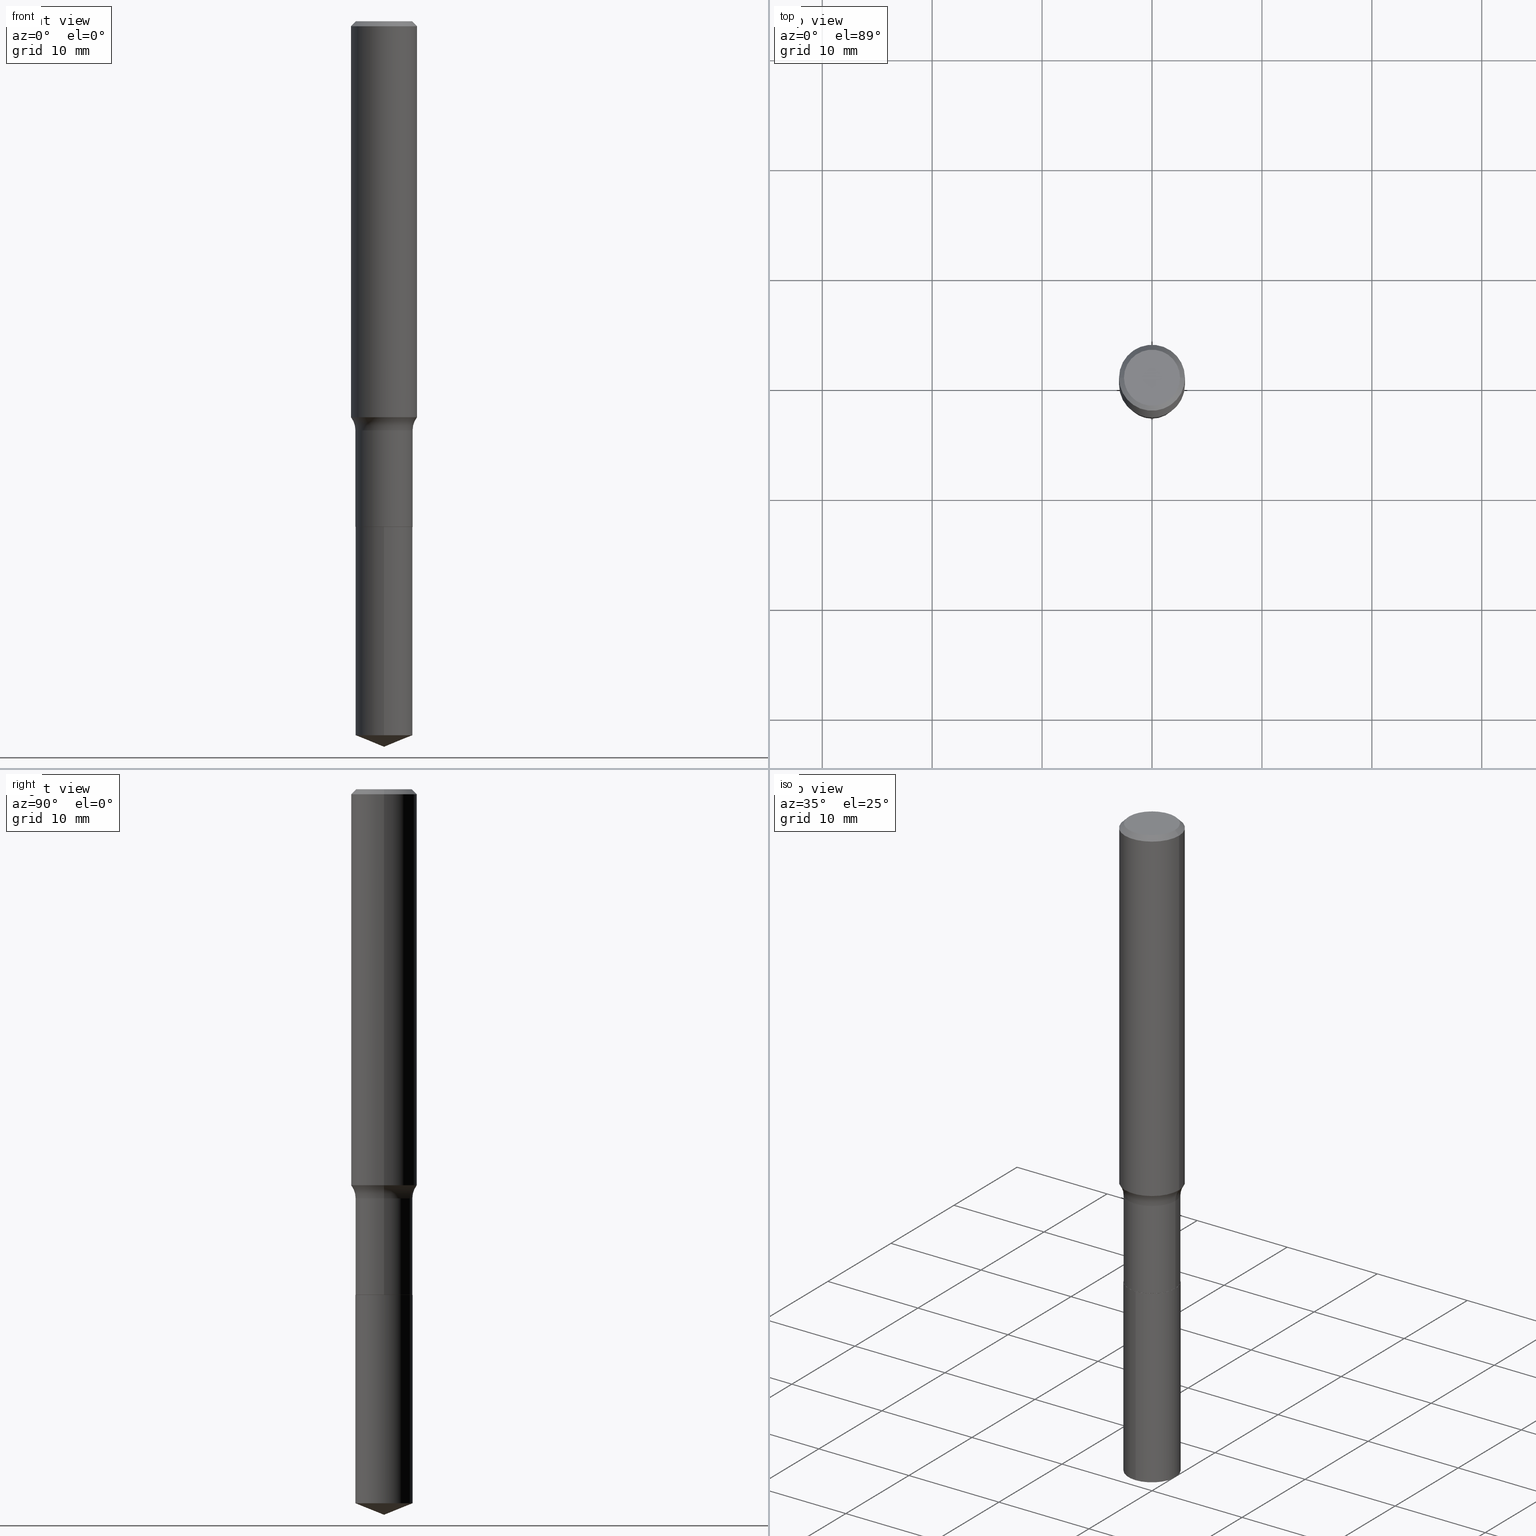
[diagram: canonical four-view strip — front | top / right | iso, engineering-drawing reading convention]
A machine part, canonical four-view strip (front | top / right | iso — engineering-drawing reading convention). The complete STEP part file that produces these views, byte-faithful:
ISO-10303-21;
HEADER;
FILE_DESCRIPTION (( 'STEP AP203' ),
    '1' );
FILE_NAME ('69142.STEP',
    '2024-04-19T17:17:02',
    ( '' ),
    ( '' ),
    'SwSTEP 2.0',
    'SolidWorks 2023',
    '' );
FILE_SCHEMA (( 'CONFIG_CONTROL_DESIGN' ));
ENDSEC;

DATA;
#1 = ORIENTED_EDGE ( 'NONE', *, *, #220, .F. ) ;
#2 = DIRECTION ( 'NONE',  ( -2.431437355357483089E-29, 3.511575175048929728E-15, 1.000000000000000000 ) ) ;
#3 = DIRECTION ( 'NONE',  ( -2.445468806185136877E-29, 3.491481338843145188E-15, 1.000000000000000000 ) ) ;
#4 = CIRCLE ( 'NONE', #60, 0.1023500000000000243 ) ;
#5 = ORIENTED_EDGE ( 'NONE', *, *, #312, .T. ) ;
#6 = ADVANCED_FACE ( 'NONE', ( #315 ), #83, .T. ) ;
#7 = DIRECTION ( 'NONE',  ( 1.000000000000000000, -6.982962677686270655E-15, 0.000000000000000000 ) ) ;
#8 = CC_DESIGN_PERSON_AND_ORGANIZATION_ASSIGNMENT ( #180, #476, ( #179 ) ) ;
#9 = FACE_OUTER_BOUND ( 'NONE', #159, .T. ) ;
#10 = ORIENTED_EDGE ( 'NONE', *, *, #53, .T. ) ;
#11 = VECTOR ( 'NONE', #52, 39.37007874015748143 ) ;
#12 = AXIS2_PLACEMENT_3D ( 'NONE', #14, #54, #157 ) ;
#13 = DIRECTION ( 'NONE',  ( 1.000000000000000000, -6.982962677686266711E-15, 0.000000000000000000 ) ) ;
#14 = CARTESIAN_POINT ( 'NONE',  ( 4.428744008001282238E-29, -6.323072704644935995E-15, -1.810999999999999943 ) ) ;
#15 = EDGE_LOOP ( 'NONE', ( #5, #18, #57, #266 ) ) ;
#16 = ORIENTED_EDGE ( 'NONE', *, *, #312, .F. ) ;
#17 = CYLINDRICAL_SURFACE ( 'NONE', #12, 0.1023499999999999965 ) ;
#18 = ORIENTED_EDGE ( 'NONE', *, *, #367, .T. ) ;
#19 = APPROVAL_ROLE ( '' ) ;
#20 = FACE_OUTER_BOUND ( 'NONE', #32, .T. ) ;
#21 = AXIS2_PLACEMENT_3D ( 'NONE', #324, #214, #478 ) ;
#22 = DIRECTION ( 'NONE',  ( -2.445468806185136597E-29, 3.491481338843145583E-15, 1.000000000000000000 ) ) ;
#23 = CYLINDRICAL_SURFACE ( 'NONE', #348, 0.1023499999999999827 ) ;
#24 = DIRECTION ( 'NONE',  ( -6.982962677686265133E-15, -1.000000000000000000, 5.338247178630703951E-15 ) ) ;
#25 = CARTESIAN_POINT ( 'NONE',  ( 0.000000000000000000, 0.000000000000000000, 0.000000000000000000 ) ) ;
#26 = DIRECTION ( 'NONE',  ( -2.445468806185136597E-29, 3.491481338843145583E-15, 1.000000000000000000 ) ) ;
#27 = PERSON_AND_ORGANIZATION ( #306, #329 ) ;
#28 = CIRCLE ( 'NONE', #100, 0.1023499999999999965 ) ;
#29 = CONICAL_SURFACE ( 'NONE', #186, 0.1018499999999999961, 0.7853981633975507526 ) ;
#30 = COORDINATED_UNIVERSAL_TIME_OFFSET ( 5, 0, .BEHIND. ) ;
#31 = DIRECTION ( 'NONE',  ( 1.000000000000000000, -6.982962677686265922E-15, 0.000000000000000000 ) ) ;
#32 = EDGE_LOOP ( 'NONE', ( #331, #409, #224, #433 ) ) ;
#33 = CARTESIAN_POINT ( 'NONE',  ( 0.1018499999999999961, -7.034287453367281792E-15, -1.810999999999999943 ) ) ;
#34 = CARTESIAN_POINT ( 'NONE',  ( 6.242712779329400961E-29, -8.942876045115246072E-15, -2.557047915785771508 ) ) ;
#35 = EDGE_LOOP ( 'NONE', ( #435, #10, #204 ) ) ;
#36 = AXIS2_PLACEMENT_3D ( 'NONE', #275, #357, #384 ) ;
#37 = ORIENTED_EDGE ( 'NONE', *, *, #118, .F. ) ;
#38 = DIRECTION ( 'NONE',  ( -2.445468806185136597E-29, 3.491481338843145583E-15, 1.000000000000000000 ) ) ;
#39 = VECTOR ( 'NONE', #405, 39.37007874015748143 ) ;
#40 = CC_DESIGN_SECURITY_CLASSIFICATION ( #269, ( #179 ) ) ;
#41 = DIRECTION ( 'NONE',  ( -6.474490251793179418E-15, -0.9271838545667864251, 0.3746065934159144017 ) ) ;
#42 = DIRECTION ( 'NONE',  ( 1.000000000000000000, -6.982962677686267499E-15, 4.883557194083112901E-29 ) ) ;
#43 = CARTESIAN_POINT ( 'NONE',  ( 3.583345441703080279E-29, -5.116067605806860307E-15, -1.465299999999999825 ) ) ;
#44 = DIRECTION ( 'NONE',  ( 6.982962677686265922E-15, 1.000000000000000000, -3.511575175048929728E-15 ) ) ;
#45 = EDGE_CURVE ( 'NONE', #439, #448, #28, .T. ) ;
#46 = DIRECTION ( 'NONE',  ( -0.7071067811865454633, 2.468850131082235761E-15, -0.7071067811865493491 ) ) ;
#47 = CARTESIAN_POINT ( 'NONE',  ( 0.1018499999999999961, -7.034287453367281792E-15, -1.810999999999999943 ) ) ;
#48 = CIRCLE ( 'NONE', #319, 0.1023499999999999965 ) ;
#49 = CARTESIAN_POINT ( 'NONE',  ( 0.1023499999999999965, -7.036033194036704874E-15, -1.810499999999999998 ) ) ;
#50 = AXIS2_PLACEMENT_3D ( 'NONE', #185, #265, #411 ) ;
#51 = ADVANCED_FACE ( 'NONE', ( #123 ), #325, .T. ) ;
#52 = DIRECTION ( 'NONE',  ( 6.588037525764791291E-15, 0.9271838545667890896, 0.3746065934159078514 ) ) ;
#53 = EDGE_CURVE ( 'NONE', #55, #81, #163, .T. ) ;
#54 = DIRECTION ( 'NONE',  ( -2.431437355357483089E-29, 3.511575175048930123E-15, 1.000000000000000000 ) ) ;
#55 = VERTEX_POINT ( 'NONE', #431 ) ;
#56 = VECTOR ( 'NONE', #429, 39.37007874015748143 ) ;
#57 = ORIENTED_EDGE ( 'NONE', *, *, #428, .F. ) ;
#58 = DIRECTION ( 'NONE',  ( -6.982962677686265922E-15, -1.000000000000000000, 2.669123589315352370E-15 ) ) ;
#59 = DIRECTION ( 'NONE',  ( 1.000000000000000000, 0.000000000000000000, 0.000000000000000000 ) ) ;
#60 = AXIS2_PLACEMENT_3D ( 'NONE', #466, #447, #24 ) ;
#61 = ADVANCED_FACE ( 'NONE', ( #393 ), #23, .T. ) ;
#62 = DIMENSIONAL_EXPONENTS ( 1.000000000000000000, 0.000000000000000000, 0.000000000000000000, 0.000000000000000000, 0.000000000000000000, 0.000000000000000000, 0.000000000000000000 ) ;
#63 = COORDINATED_UNIVERSAL_TIME_OFFSET ( 5, 0, .BEHIND. ) ;
#64 = EDGE_CURVE ( 'NONE', #253, #304, #67, .T. ) ;
#65 = PERSON_AND_ORGANIZATION ( #306, #329 ) ;
#66 = EDGE_CURVE ( 'NONE', #256, #360, #363, .T. ) ;
#67 = CIRCLE ( 'NONE', #196, 0.1018499999999999961 ) ;
#68 = CC_DESIGN_APPROVAL ( #252, ( #279 ) ) ;
#69 = MANIFOLD_SOLID_BREP ( 'Body-Move/Copy2[1]', #238 ) ;
#70 = LINE ( 'NONE', #33, #201 ) ;
#71 = EDGE_CURVE ( 'NONE', #116, #79, #232, .T. ) ;
#72 = ORIENTED_EDGE ( 'NONE', *, *, #446, .T. ) ;
#73 = PERSON_AND_ORGANIZATION ( #306, #329 ) ;
#74 = EDGE_LOOP ( 'NONE', ( #158, #236, #113, #346 ) ) ;
#75 = DIRECTION ( 'NONE',  ( -0.7071067811866199593, 7.493145998870616062E-15, 0.7071067811864750752 ) ) ;
#76 = EDGE_CURVE ( 'NONE', #79, #116, #48, .T. ) ;
#77 = DIRECTION ( 'NONE',  ( 7.105427357601001859E-15, 1.000000000000000000, -3.491481338843145583E-15 ) ) ;
#78 = CIRCLE ( 'NONE', #313, 0.07800000000000002764 ) ;
#79 = VERTEX_POINT ( 'NONE', #130 ) ;
#80 = DIRECTION ( 'NONE',  ( 1.000000000000000000, -6.982962677686268288E-15, 0.000000000000000000 ) ) ;
#81 = VERTEX_POINT ( 'NONE', #362 ) ;
#82 = EDGE_CURVE ( 'NONE', #407, #119, #102, .T. ) ;
#83 = CYLINDRICAL_SURFACE ( 'NONE', #470, 0.1181000000000000799 ) ;
#84 = AXIS2_PLACEMENT_3D ( 'NONE', #43, #417, #257 ) ;
#85 = CARTESIAN_POINT ( 'NONE',  ( 0.000000000000000000, 0.000000000000000000, 0.000000000000000000 ) ) ;
#86 = CARTESIAN_POINT ( 'NONE',  ( 4.332147990156996744E-31, -6.185159191760671627E-17, -0.01771500000000011260 ) ) ;
#87 = ORIENTED_EDGE ( 'NONE', *, *, #82, .T. ) ;
#88 = ORIENTED_EDGE ( 'NONE', *, *, #397, .T. ) ;
#89 = EDGE_CURVE ( 'NONE', #423, #165, #168, .T. ) ;
#90 = AXIS2_PLACEMENT_3D ( 'NONE', #151, #372, #307 ) ;
#91 = LOCAL_TIME ( 13, 17, 2.000000000000000000, #63 ) ;
#92 = DIRECTION ( 'NONE',  ( -2.445468806185136597E-29, 3.491481338843145583E-15, 1.000000000000000000 ) ) ;
#93 = ORIENTED_EDGE ( 'NONE', *, *, #220, .T. ) ;
#94 = EDGE_CURVE ( 'NONE', #360, #256, #140, .T. ) ;
#95 = ADVANCED_BREP_SHAPE_REPRESENTATION ( '69142', ( #69, #374, #178 ), #406 ) ;
#96 = TOROIDAL_SURFACE ( 'NONE', #268, 0.1803499999999999548, 0.07800000000000001377 ) ;
#97 = PERSON_AND_ORGANIZATION_ROLE ( 'creator' ) ;
#98 = LINE ( 'NONE', #195, #278 ) ;
#99 = DIRECTION ( 'NONE',  ( 1.000000000000000000, -6.982962677686265922E-15, 0.000000000000000000 ) ) ;
#100 = AXIS2_PLACEMENT_3D ( 'NONE', #388, #198, #7 ) ;
#101 = EDGE_CURVE ( 'NONE', #448, #439, #206, .T. ) ;
#102 = CIRCLE ( 'NONE', #385, 0.1181000000000001632 ) ;
#103 = DATE_AND_TIME ( #182, #187 ) ;
#104 = FACE_OUTER_BOUND ( 'NONE', #35, .T. ) ;
#105 = ORIENTED_EDGE ( 'NONE', *, *, #446, .F. ) ;
#106 = DATE_TIME_ROLE ( 'classification_date' ) ;
#107 = EDGE_LOOP ( 'NONE', ( #427, #202, #300, #37 ) ) ;
#108 = CARTESIAN_POINT ( 'NONE',  ( 4.428744008001282238E-29, -6.323072704644935995E-15, -1.810999999999999943 ) ) ;
#109 = PLANE ( 'NONE',  #291 ) ;
#110 = VECTOR ( 'NONE', #298, 39.37007874015748143 ) ;
#111 = CARTESIAN_POINT ( 'NONE',  ( 0.1180999999999999966, -8.865394841523547570E-16, -0.01771500000000011260 ) ) ;
#112 = CIRCLE ( 'NONE', #197, 0.1023499999999999688 ) ;
#113 = ORIENTED_EDGE ( 'NONE', *, *, #240, .T. ) ;
#114 = DIRECTION ( 'NONE',  ( 1.000000000000000000, -6.982962677686266711E-15, 0.000000000000000000 ) ) ;
#115 = EDGE_CURVE ( 'NONE', #256, #188, #230, .T. ) ;
#116 = VERTEX_POINT ( 'NONE', #453 ) ;
#117 = CARTESIAN_POINT ( 'NONE',  ( -8.938262235057461474E-28, 1.291629041461802011E-13, 36.77167874015748339 ) ) ;
#118 = EDGE_CURVE ( 'NONE', #165, #423, #112, .T. ) ;
#119 = VERTEX_POINT ( 'NONE', #228 ) ;
#120 = VECTOR ( 'NONE', #41, 39.37007874015748143 ) ;
#121 = APPROVAL_PERSON_ORGANIZATION ( #27, #267, #175 ) ;
#122 = DIRECTION ( 'NONE',  ( 1.000000000000000000, -6.982962677686270655E-15, 0.000000000000000000 ) ) ;
#123 = FACE_OUTER_BOUND ( 'NONE', #390, .T. ) ;
#124 = EDGE_CURVE ( 'NONE', #360, #137, #340, .T. ) ;
#125 = ORIENTED_EDGE ( 'NONE', *, *, #89, .T. ) ;
#126 = CARTESIAN_POINT ( 'NONE',  ( 4.428744008001282238E-29, -6.323072704644935995E-15, -1.810999999999999943 ) ) ;
#127 = DIRECTION ( 'NONE',  ( 1.000000000000000000, -6.982962677686266711E-15, 4.876176775795936353E-29 ) ) ;
#128 = ORIENTED_EDGE ( 'NONE', *, *, #205, .T. ) ;
#129 = EDGE_CURVE ( 'NONE', #119, #423, #78, .T. ) ;
#130 = CARTESIAN_POINT ( 'NONE',  ( 7.272404900505251315E-16, 0.1023499999999936821, -1.811000000000000165 ) ) ;
#131 = CARTESIAN_POINT ( 'NONE',  ( 0.000000000000000000, 0.000000000000000000, 0.000000000000000000 ) ) ;
#132 = CARTESIAN_POINT ( 'NONE',  ( 0.1003850000000000159, -7.803837484803599345E-16, -2.868857591682071522E-17 ) ) ;
#133 = COORDINATED_UNIVERSAL_TIME_OFFSET ( 5, 0, .BEHIND. ) ;
#134 = AXIS2_PLACEMENT_3D ( 'NONE', #108, #371, #99 ) ;
#135 = APPROVAL_STATUS ( 'not_yet_approved' ) ;
#136 = MECHANICAL_CONTEXT ( 'NONE', #164, 'mechanical' ) ;
#137 = VERTEX_POINT ( 'NONE', #111 ) ;
#138 = CARTESIAN_POINT ( 'NONE',  ( -0.1018499999999999961, -5.599384928273273983E-15, -1.810999999999999943 ) ) ;
#139 = LINE ( 'NONE', #219, #110 ) ;
#140 = CIRCLE ( 'NONE', #425, 0.1003850000000000159 ) ;
#141 = CIRCLE ( 'NONE', #251, 0.1023500000000000243 ) ;
#142 = ORIENTED_EDGE ( 'NONE', *, *, #205, .F. ) ;
#143 = DIRECTION ( 'NONE',  ( 0.7071067811866199593, -2.468850131083015945E-15, 0.7071067811864750752 ) ) ;
#144 = DIRECTION ( 'NONE',  ( 2.438088387897960049E-29, -3.491481338843145188E-15, -1.000000000000000000 ) ) ;
#145 = EDGE_CURVE ( 'NONE', #253, #439, #191, .T. ) ;
#146 = EDGE_LOOP ( 'NONE', ( #142, #193 ) ) ;
#147 = DIRECTION ( 'NONE',  ( -2.445468806185136597E-29, 3.491481338843145583E-15, 1.000000000000000000 ) ) ;
#148 = CARTESIAN_POINT ( 'NONE',  ( 3.583345441703080279E-29, -5.116067605806860307E-15, -1.465299999999999825 ) ) ;
#149 = AXIS2_PLACEMENT_3D ( 'NONE', #378, #77, #301 ) ;
#150 = ORIENTED_EDGE ( 'NONE', *, *, #82, .F. ) ;
#151 = CARTESIAN_POINT ( 'NONE',  ( 4.332147990156996744E-31, -6.185159191760671627E-17, -0.01771500000000011260 ) ) ;
#152 = EDGE_LOOP ( 'NONE', ( #150, #93, #277, #262 ) ) ;
#153 = ADVANCED_FACE ( 'NONE', ( #104 ), #349, .T. ) ;
#154 = CYLINDRICAL_SURFACE ( 'NONE', #473, 0.1023499999999999827 ) ;
#155 = ORIENTED_EDGE ( 'NONE', *, *, #76, .F. ) ;
#156 = CC_DESIGN_APPROVAL ( #267, ( #179 ) ) ;
#157 = DIRECTION ( 'NONE',  ( -6.982962677686265922E-15, -1.000000000000000000, 2.669123589315352370E-15 ) ) ;
#158 = ORIENTED_EDGE ( 'NONE', *, *, #145, .F. ) ;
#159 = EDGE_LOOP ( 'NONE', ( #352, #430, #380, #461 ) ) ;
#160 = CARTESIAN_POINT ( 'NONE',  ( -0.1018499999999999961, -5.596735701099162782E-15, -1.810999999999999943 ) ) ;
#161 = CARTESIAN_POINT ( 'NONE',  ( 4.428744008001282238E-29, -6.323072704644935995E-15, -1.810999999999999943 ) ) ;
#162 = DIRECTION ( 'NONE',  ( -2.431437355357483089E-29, 3.511575175048930123E-15, 1.000000000000000000 ) ) ;
#163 = LINE ( 'NONE', #308, #11 ) ;
#164 = APPLICATION_CONTEXT ( 'configuration controlled 3d designs of mechanical parts and assemblies' ) ;
#165 = VERTEX_POINT ( 'NONE', #222 ) ;
#166 = CALENDAR_DATE ( 2024, 19, 4 ) ;
#167 = CC_DESIGN_DATE_AND_TIME_ASSIGNMENT ( #366, #176, ( #279 ) ) ;
#168 = CIRCLE ( 'NONE', #84, 0.1023499999999999688 ) ;
#169 = AXIS2_PLACEMENT_3D ( 'NONE', #386, #200, #122 ) ;
#170 = CARTESIAN_POINT ( 'NONE',  ( 0.000000000000000000, 0.000000000000000000, 0.000000000000000000 ) ) ;
#171 = CALENDAR_DATE ( 2024, 19, 4 ) ;
#172 = EDGE_CURVE ( 'NONE', #455, #116, #486, .T. ) ;
#173 = PERSON_AND_ORGANIZATION_ROLE ( 'classification_officer' ) ;
#174 = DIRECTION ( 'NONE',  ( 0.000000000000000000, 0.000000000000000000, 1.000000000000000000 ) ) ;
#175 = APPROVAL_ROLE ( '' ) ;
#176 = DATE_TIME_ROLE ( 'creation_date' ) ;
#177 = CONICAL_SURFACE ( 'NONE', #90, 0.1180999999999999966, 0.7853981633974456145 ) ;
#178 = AXIS2_PLACEMENT_3D ( 'NONE', #25, #174, #59 ) ;
#179 = PRODUCT_DEFINITION_FORMATION_WITH_SPECIFIED_SOURCE ( 'ANY', '', #440, .NOT_KNOWN. ) ;
#180 = PERSON_AND_ORGANIZATION ( #306, #329 ) ;
#181 = EDGE_LOOP ( 'NONE', ( #1, #16, #243, #125 ) ) ;
#182 = CALENDAR_DATE ( 2024, 19, 4 ) ;
#183 = ORIENTED_EDGE ( 'NONE', *, *, #66, .T. ) ;
#184 = CARTESIAN_POINT ( 'NONE',  ( 0.1180999999999999966, -8.720764054544245267E-16, -0.01771500000000011260 ) ) ;
#185 = CARTESIAN_POINT ( 'NONE',  ( 4.428744008001282238E-29, -6.323072704644935995E-15, -1.810999999999999943 ) ) ;
#186 = AXIS2_PLACEMENT_3D ( 'NONE', #161, #22, #31 ) ;
#187 = LOCAL_TIME ( 13, 17, 2.000000000000000000, #261 ) ;
#188 = VERTEX_POINT ( 'NONE', #218 ) ;
#189 = DIRECTION ( 'NONE',  ( -2.445468806185136597E-29, 3.491481338843145583E-15, 1.000000000000000000 ) ) ;
#190 = FACE_OUTER_BOUND ( 'NONE', #373, .T. ) ;
#191 = LINE ( 'NONE', #138, #463 ) ;
#192 = CARTESIAN_POINT ( 'NONE',  ( 6.317846824160882656E-29, -9.124476934847141705E-15, -2.598399999999999821 ) ) ;
#193 = ORIENTED_EDGE ( 'NONE', *, *, #64, .F. ) ;
#194 = CARTESIAN_POINT ( 'NONE',  ( 0.1803499999999999548, -6.375444924727577947E-15, -1.465299999999999825 ) ) ;
#195 = CARTESIAN_POINT ( 'NONE',  ( -0.1181000000000000799, 8.391509709326788873E-16, -5.809262341591047988E-30 ) ) ;
#196 = AXIS2_PLACEMENT_3D ( 'NONE', #126, #283, #246 ) ;
#197 = AXIS2_PLACEMENT_3D ( 'NONE', #381, #147, #297 ) ;
#198 = DIRECTION ( 'NONE',  ( -2.445468806185136597E-29, 3.491481338843145583E-15, 1.000000000000000000 ) ) ;
#199 = ORIENTED_EDGE ( 'NONE', *, *, #66, .F. ) ;
#200 = DIRECTION ( 'NONE',  ( -2.445468806185136597E-29, 3.491481338843145583E-15, 1.000000000000000000 ) ) ;
#201 = VECTOR ( 'NONE', #143, 39.37007874015748143 ) ;
#202 = ORIENTED_EDGE ( 'NONE', *, *, #45, .T. ) ;
#203 = DIRECTION ( 'NONE',  ( -2.431437355357483089E-29, 3.511575175048930123E-15, 1.000000000000000000 ) ) ;
#204 = ORIENTED_EDGE ( 'NONE', *, *, #358, .F. ) ;
#205 = EDGE_CURVE ( 'NONE', #304, #253, #480, .T. ) ;
#206 = CIRCLE ( 'NONE', #484, 0.1023499999999999965 ) ;
#207 = AXIS2_PLACEMENT_3D ( 'NONE', #464, #394, #432 ) ;
#208 = APPROVAL_PERSON_ORGANIZATION ( #242, #252, #19 ) ;
#209 = PERSON_AND_ORGANIZATION ( #306, #329 ) ;
#210 = DIRECTION ( 'NONE',  ( 1.000000000000000000, -6.982962677686266711E-15, 4.876176775795936353E-29 ) ) ;
#211 = ADVANCED_FACE ( 'NONE', ( #456 ), #227, .F. ) ;
#212 = PERSON_AND_ORGANIZATION ( #306, #329 ) ;
#213 = DATE_AND_TIME ( #166, #91 ) ;
#214 = DIRECTION ( 'NONE',  ( -2.445468806185136597E-29, 3.491481338843145583E-15, 1.000000000000000000 ) ) ;
#215 = AXIS2_PLACEMENT_3D ( 'NONE', #131, #92, #210 ) ;
#216 = LOCAL_TIME ( 13, 17, 2.000000000000000000, #30 ) ;
#217 = PERSON_AND_ORGANIZATION_ROLE ( 'creator' ) ;
#218 = CARTESIAN_POINT ( 'NONE',  ( -0.1180999999999999966, -1.667759977206778144E-15, -0.01771500000000011260 ) ) ;
#219 = CARTESIAN_POINT ( 'NONE',  ( 7.272404900505066918E-16, 0.1023499999999936821, -1.811000000000000165 ) ) ;
#220 = EDGE_CURVE ( 'NONE', #407, #165, #414, .T. ) ;
#221 = ORIENTED_EDGE ( 'NONE', *, *, #356, .F. ) ;
#222 = CARTESIAN_POINT ( 'NONE',  ( -0.1023499999999999688, -4.991456794840725672E-15, -1.465299999999999825 ) ) ;
#223 = CARTESIAN_POINT ( 'NONE',  ( 4.428744008001282238E-29, -6.323072704644935995E-15, -1.810999999999999943 ) ) ;
#224 = ORIENTED_EDGE ( 'NONE', *, *, #71, .F. ) ;
#225 = CARTESIAN_POINT ( 'NONE',  ( -0.1180999999999999966, 7.628363003171413738E-16, -0.01771500000000011260 ) ) ;
#226 = CARTESIAN_POINT ( 'NONE',  ( 3.507850874923593654E-46, -5.008281372579124849E-32, -1.434428795841294606E-17 ) ) ;
#227 = TOROIDAL_SURFACE ( 'NONE', #245, 0.1803499999999999548, 0.07800000000000001377 ) ;
#228 = CARTESIAN_POINT ( 'NONE',  ( 0.1181000000000001909, -5.776658196596058691E-15, -1.418300664898319630 ) ) ;
#229 = ORIENTED_EDGE ( 'NONE', *, *, #353, .T. ) ;
#230 = LINE ( 'NONE', #225, #285 ) ;
#231 = ORIENTED_EDGE ( 'NONE', *, *, #172, .T. ) ;
#232 = CIRCLE ( 'NONE', #250, 0.1023499999999999965 ) ;
#233 = DIRECTION ( 'NONE',  ( -2.445468806185136597E-29, 3.491481338843145583E-15, 1.000000000000000000 ) ) ;
#234 = EDGE_CURVE ( 'NONE', #439, #165, #249, .T. ) ;
#235 = DIRECTION ( 'NONE',  ( -2.445468806185136597E-29, 3.491481338843145583E-15, 1.000000000000000000 ) ) ;
#236 = ORIENTED_EDGE ( 'NONE', *, *, #64, .T. ) ;
#237 = ORIENTED_EDGE ( 'NONE', *, *, #124, .F. ) ;
#238 = CLOSED_SHELL ( 'NONE', ( #343, #153, #336, #344, #382 ) ) ;
#239 = DIRECTION ( 'NONE',  ( 1.000000000000000000, -6.982962677686270655E-15, 0.000000000000000000 ) ) ;
#240 = EDGE_CURVE ( 'NONE', #304, #448, #70, .T. ) ;
#241 = CYLINDRICAL_SURFACE ( 'NONE', #207, 0.1023499999999999965 ) ;
#242 = PERSON_AND_ORGANIZATION ( #306, #329 ) ;
#243 = ORIENTED_EDGE ( 'NONE', *, *, #129, .T. ) ;
#244 = APPLICATION_PROTOCOL_DEFINITION ( 'international standard', 'config_control_design', 1994, #164 ) ;
#245 = AXIS2_PLACEMENT_3D ( 'NONE', #148, #259, #413 ) ;
#246 = DIRECTION ( 'NONE',  ( 1.000000000000000000, -6.982962677686265922E-15, 0.000000000000000000 ) ) ;
#247 =( LENGTH_UNIT ( ) NAMED_UNIT ( * ) SI_UNIT ( $, .METRE. ) );
#248 = DIRECTION ( 'NONE',  ( -2.445468806185136597E-29, 3.491481338843145583E-15, 1.000000000000000000 ) ) ;
#249 = LINE ( 'NONE', #293, #39 ) ;
#250 = AXIS2_PLACEMENT_3D ( 'NONE', #438, #276, #321 ) ;
#251 = AXIS2_PLACEMENT_3D ( 'NONE', #34, #290, #450 ) ;
#252 = APPROVAL ( #368, 'UNSPECIFIED' ) ;
#253 = VERTEX_POINT ( 'NONE', #160 ) ;
#254 = DIRECTION ( 'NONE',  ( -2.431437355357483089E-29, 3.511575175048930123E-15, 1.000000000000000000 ) ) ;
#255 = APPROVAL_ROLE ( '' ) ;
#256 = VERTEX_POINT ( 'NONE', #392 ) ;
#257 = DIRECTION ( 'NONE',  ( 1.000000000000000000, -6.982962677686262766E-15, 0.000000000000000000 ) ) ;
#258 = ORIENTED_EDGE ( 'NONE', *, *, #434, .F. ) ;
#259 = DIRECTION ( 'NONE',  ( -2.445468806185136597E-29, 3.491481338843145583E-15, 1.000000000000000000 ) ) ;
#260 = VECTOR ( 'NONE', #424, 39.37007874015748143 ) ;
#261 = COORDINATED_UNIVERSAL_TIME_OFFSET ( 5, 0, .BEHIND. ) ;
#262 = ORIENTED_EDGE ( 'NONE', *, *, #129, .F. ) ;
#263 = DESIGN_CONTEXT ( 'detailed design', #387, 'design' ) ;
#264 = DIRECTION ( 'NONE',  ( -2.445468806185136597E-29, 3.491481338843145583E-15, 1.000000000000000000 ) ) ;
#265 = DIRECTION ( 'NONE',  ( -2.438088387897960049E-29, 3.491481338843145188E-15, 1.000000000000000000 ) ) ;
#266 = ORIENTED_EDGE ( 'NONE', *, *, #353, .F. ) ;
#267 = APPROVAL ( #135, 'UNSPECIFIED' ) ;
#268 = AXIS2_PLACEMENT_3D ( 'NONE', #338, #489, #42 ) ;
#269 = SECURITY_CLASSIFICATION ( '', '', #441 ) ;
#270 = ORIENTED_EDGE ( 'NONE', *, *, #71, .T. ) ;
#271 = FACE_OUTER_BOUND ( 'NONE', #152, .T. ) ;
#272 = EDGE_CURVE ( 'NONE', #448, #423, #309, .T. ) ;
#273 = FACE_OUTER_BOUND ( 'NONE', #318, .T. ) ;
#274 = ORIENTED_EDGE ( 'NONE', *, *, #53, .F. ) ;
#275 = CARTESIAN_POINT ( 'NONE',  ( 4.332147990156996744E-31, -6.185159191760671627E-17, -0.01771500000000011260 ) ) ;
#276 = DIRECTION ( 'NONE',  ( -2.431437355357483089E-29, 3.511575175048930123E-15, 1.000000000000000000 ) ) ;
#277 = ORIENTED_EDGE ( 'NONE', *, *, #118, .T. ) ;
#278 = VECTOR ( 'NONE', #3, 39.37007874015748143 ) ;
#279 = PRODUCT_DEFINITION ( 'UNKNOWN', '', #179, #263 ) ;
#280 = ORIENTED_EDGE ( 'NONE', *, *, #145, .T. ) ;
#281 = CARTESIAN_POINT ( 'NONE',  ( 3.468410033800479297E-29, -4.951970304361308851E-15, -1.418300664898319630 ) ) ;
#282 =( NAMED_UNIT ( * ) PLANE_ANGLE_UNIT ( ) SI_UNIT ( $, .RADIAN. ) );
#283 = DIRECTION ( 'NONE',  ( -2.445468806185136597E-29, 3.491481338843145583E-15, 1.000000000000000000 ) ) ;
#284 = CYLINDRICAL_SURFACE ( 'NONE', #215, 0.1181000000000000799 ) ;
#285 = VECTOR ( 'NONE', #46, 39.37007874015748854 ) ;
#286 = DATE_AND_TIME ( #171, #216 ) ;
#287 = CARTESIAN_POINT ( 'NONE',  ( 7.015701749847187307E-46, -1.001656274515824970E-31, -2.868857591682589212E-17 ) ) ;
#288 = APPROVAL ( #383, 'UNSPECIFIED' ) ;
#289 = DIRECTION ( 'NONE',  ( 0.7071067811865454633, -7.319954787623246579E-15, -0.7071067811865493491 ) ) ;
#290 = DIRECTION ( 'NONE',  ( -2.431437355357483089E-29, 3.511575175048930123E-15, 1.000000000000000000 ) ) ;
#291 = AXIS2_PLACEMENT_3D ( 'NONE', #223, #491, #44 ) ;
#292 = ORIENTED_EDGE ( 'NONE', *, *, #428, .T. ) ;
#293 = CARTESIAN_POINT ( 'NONE',  ( -0.1023499999999999827, 7.272404900504624170E-16, -5.034530064875895945E-30 ) ) ;
#294 = CARTESIAN_POINT ( 'NONE',  ( 4.332147990156996744E-31, -6.185159191760671627E-17, -0.01771500000000011260 ) ) ;
#295 = DATE_AND_TIME ( #299, #400 ) ;
#296 = ORIENTED_EDGE ( 'NONE', *, *, #240, .F. ) ;
#297 = DIRECTION ( 'NONE',  ( 1.000000000000000000, -6.982962677686262766E-15, 0.000000000000000000 ) ) ;
#298 = DIRECTION ( 'NONE',  ( -2.431437355357483089E-29, 3.511575175048929728E-15, 1.000000000000000000 ) ) ;
#299 = CALENDAR_DATE ( 2024, 19, 4 ) ;
#300 = ORIENTED_EDGE ( 'NONE', *, *, #272, .T. ) ;
#301 = DIRECTION ( 'NONE',  ( -1.000000000000000000, 7.105427357601001859E-15, 0.000000000000000000 ) ) ;
#302 = PLANE ( 'NONE',  #327 ) ;
#303 = CONICAL_SURFACE ( 'NONE', #21, 0.1018499999999999961, 0.7853981633975507526 ) ;
#304 = VERTEX_POINT ( 'NONE', #47 ) ;
#305 = CARTESIAN_POINT ( 'NONE',  ( 0.1023499999999999827, -7.147062300611892976E-16, 4.990766930027139796E-30 ) ) ;
#306 = PERSON ( 'UNSPECIFIED', 'UNSPECIFIED', 'UNSPECIFIED', ('UNSPECIFIED'), ('UNSPECIFIED'), ('UNSPECIFIED') ) ;
#307 = DIRECTION ( 'NONE',  ( -1.000000000000000000, 6.982962677686266711E-15, 0.000000000000000000 ) ) ;
#308 = CARTESIAN_POINT ( 'NONE',  ( 6.369114387261840438E-29, -9.051697060109789399E-15, -2.598399999999999821 ) ) ;
#309 = LINE ( 'NONE', #305, #260 ) ;
#310 = CARTESIAN_POINT ( 'NONE',  ( -7.147062300611273721E-16, -0.1023500000000090032, -2.557047915785771064 ) ) ;
#311 = EDGE_LOOP ( 'NONE', ( #258, #72, #231, #155 ) ) ;
#312 = EDGE_CURVE ( 'NONE', #119, #407, #426, .T. ) ;
#313 = AXIS2_PLACEMENT_3D ( 'NONE', #194, #347, #80 ) ;
#314 = DIRECTION ( 'NONE',  ( 1.000000000000000000, -6.982962677686266711E-15, 4.876176775795936353E-29 ) ) ;
#315 = FACE_OUTER_BOUND ( 'NONE', #15, .T. ) ;
#316 = DIRECTION ( 'NONE',  ( 1.000000000000000000, -6.982962677686266711E-15, 4.876176775795936353E-29 ) ) ;
#317 = DIRECTION ( 'NONE',  ( -2.445468806185136597E-29, 3.491481338843145583E-15, 1.000000000000000000 ) ) ;
#318 = EDGE_LOOP ( 'NONE', ( #128, #280, #485, #296 ) ) ;
#319 = AXIS2_PLACEMENT_3D ( 'NONE', #396, #203, #58 ) ;
#320 = CIRCLE ( 'NONE', #399, 0.1180999999999999966 ) ;
#321 = DIRECTION ( 'NONE',  ( -6.982962677686265922E-15, -1.000000000000000000, 2.669123589315352370E-15 ) ) ;
#322 = LINE ( 'NONE', #475, #56 ) ;
#323 = PRODUCT_RELATED_PRODUCT_CATEGORY ( 'detail', '', ( #440 ) ) ;
#324 = CARTESIAN_POINT ( 'NONE',  ( 4.428744008001282238E-29, -6.323072704644935995E-15, -1.810999999999999943 ) ) ;
#325 = CONICAL_SURFACE ( 'NONE', #36, 0.1180999999999999966, 0.7853981633974456145 ) ;
#326 = CALENDAR_DATE ( 2024, 19, 4 ) ;
#327 = AXIS2_PLACEMENT_3D ( 'NONE', #226, #144, #454 ) ;
#328 = AXIS2_PLACEMENT_3D ( 'NONE', #86, #235, #13 ) ;
#329 = ORGANIZATION ( 'UNSPECIFIED', 'UNSPECIFIED', '' ) ;
#330 = LENGTH_MEASURE_WITH_UNIT ( LENGTH_MEASURE( 0.02539999999999999897 ), #247 );
#331 = ORIENTED_EDGE ( 'NONE', *, *, #358, .T. ) ;
#332 = ADVANCED_FACE ( 'NONE', ( #271 ), #96, .F. ) ;
#333 = ORIENTED_EDGE ( 'NONE', *, *, #94, .F. ) ;
#334 = CARTESIAN_POINT ( 'NONE',  ( -8.938262235057461474E-28, 1.291629041461802011E-13, 36.77167874015748339 ) ) ;
#335 = VECTOR ( 'NONE', #2, 39.37007874015748143 ) ;
#336 = ADVANCED_FACE ( 'NONE', ( #190 ), #377, .T. ) ;
#337 = APPROVAL_PERSON_ORGANIZATION ( #73, #288, #255 ) ;
#338 = CARTESIAN_POINT ( 'NONE',  ( 3.583345441703080279E-29, -5.116067605806860307E-15, -1.465299999999999825 ) ) ;
#339 = ORIENTED_EDGE ( 'NONE', *, *, #76, .T. ) ;
#340 = LINE ( 'NONE', #184, #449 ) ;
#341 = PLANE ( 'NONE',  #50 ) ;
#342 = CC_DESIGN_DATE_AND_TIME_ASSIGNMENT ( #295, #106, ( #269 ) ) ;
#343 = ADVANCED_FACE ( 'NONE', ( #20 ), #241, .T. ) ;
#344 = ADVANCED_FACE ( 'NONE', ( #351 ), #17, .T. ) ;
#345 = SHAPE_DEFINITION_REPRESENTATION ( #474, #95 ) ;
#346 = ORIENTED_EDGE ( 'NONE', *, *, #45, .F. ) ;
#347 = DIRECTION ( 'NONE',  ( -6.982962677686266711E-15, -1.000000000000000000, 3.491481338843145583E-15 ) ) ;
#348 = AXIS2_PLACEMENT_3D ( 'NONE', #443, #248, #316 ) ;
#349 = CONICAL_SURFACE ( 'NONE', #354, 97.44436430772844915, 1.186823891356145078 ) ;
#350 = ADVANCED_FACE ( 'NONE', ( #9 ), #154, .T. ) ;
#351 = FACE_OUTER_BOUND ( 'NONE', #311, .T. ) ;
#352 = ORIENTED_EDGE ( 'NONE', *, *, #101, .T. ) ;
#353 = EDGE_CURVE ( 'NONE', #119, #137, #322, .T. ) ;
#354 = AXIS2_PLACEMENT_3D ( 'NONE', #334, #254, #408 ) ;
#355 = ORIENTED_EDGE ( 'NONE', *, *, #124, .T. ) ;
#356 = EDGE_CURVE ( 'NONE', #188, #137, #369, .T. ) ;
#357 = DIRECTION ( 'NONE',  ( 2.445468806185136597E-29, -3.491481338843145583E-15, -1.000000000000000000 ) ) ;
#358 = EDGE_CURVE ( 'NONE', #455, #81, #4, .T. ) ;
#359 = DIRECTION ( 'NONE',  ( -2.445468806185136597E-29, 3.491481338843145583E-15, 1.000000000000000000 ) ) ;
#360 = VERTEX_POINT ( 'NONE', #132 ) ;
#361 = APPLICATION_PROTOCOL_DEFINITION ( 'international standard', 'config_control_design', 1994, #387 ) ;
#362 = CARTESIAN_POINT ( 'NONE',  ( 7.272404900505251315E-16, 0.1023499999999911009, -2.557047915785771952 ) ) ;
#363 = CIRCLE ( 'NONE', #471, 0.1003850000000000159 ) ;
#364 = ADVANCED_FACE ( 'NONE', ( #365 ), #303, .T. ) ;
#365 = FACE_OUTER_BOUND ( 'NONE', #74, .T. ) ;
#366 = DATE_AND_TIME ( #326, #487 ) ;
#367 = EDGE_CURVE ( 'NONE', #407, #188, #98, .T. ) ;
#368 = APPROVAL_STATUS ( 'not_yet_approved' ) ;
#369 = CIRCLE ( 'NONE', #328, 0.1180999999999999966 ) ;
#370 = UNCERTAINTY_MEASURE_WITH_UNIT (LENGTH_MEASURE( 1.000000000000000082E-05 ), #398, 'distance_accuracy_value', 'NONE');
#371 = DIRECTION ( 'NONE',  ( -2.445468806185136597E-29, 3.491481338843145583E-15, 1.000000000000000000 ) ) ;
#372 = DIRECTION ( 'NONE',  ( 2.445468806185136597E-29, -3.491481338843145583E-15, -1.000000000000000000 ) ) ;
#373 = EDGE_LOOP ( 'NONE', ( #274, #88, #105 ) ) ;
#374 = MANIFOLD_SOLID_BREP ( 'Body-Move/Copy2[2]', #457 ) ;
#375 = EDGE_LOOP ( 'NONE', ( #333, #355, #292, #419 ) ) ;
#376 = FACE_OUTER_BOUND ( 'NONE', #146, .T. ) ;
#377 = CONICAL_SURFACE ( 'NONE', #391, 97.44436430772844915, 1.186823891356145078 ) ;
#378 = CARTESIAN_POINT ( 'NONE',  ( -0.1803499999999999548, -3.834603781863519549E-15, -1.465299999999999825 ) ) ;
#379 = FACE_OUTER_BOUND ( 'NONE', #490, .T. ) ;
#380 = ORIENTED_EDGE ( 'NONE', *, *, #89, .F. ) ;
#381 = CARTESIAN_POINT ( 'NONE',  ( 3.583345441703080279E-29, -5.116067605806860307E-15, -1.465299999999999825 ) ) ;
#382 = ADVANCED_FACE ( 'NONE', ( #379 ), #109, .F. ) ;
#383 = APPROVAL_STATUS ( 'not_yet_approved' ) ;
#384 = DIRECTION ( 'NONE',  ( -1.000000000000000000, 6.982962677686266711E-15, 0.000000000000000000 ) ) ;
#385 = AXIS2_PLACEMENT_3D ( 'NONE', #281, #359, #239 ) ;
#386 = CARTESIAN_POINT ( 'NONE',  ( 3.468410033800479297E-29, -4.951970304361308851E-15, -1.418300664898319630 ) ) ;
#387 = APPLICATION_CONTEXT ( 'configuration controlled 3d designs of mechanical parts and assemblies' ) ;
#388 = CARTESIAN_POINT ( 'NONE',  ( 4.427521273598189436E-29, -6.321326963975514491E-15, -1.810499999999999998 ) ) ;
#389 = ADVANCED_FACE ( 'NONE', ( #376 ), #341, .F. ) ;
#390 = EDGE_LOOP ( 'NONE', ( #237, #199, #458, #422 ) ) ;
#391 = AXIS2_PLACEMENT_3D ( 'NONE', #117, #162, #468 ) ;
#392 = CARTESIAN_POINT ( 'NONE',  ( -0.1003850000000000159, 7.319105043583386689E-16, -2.868857591683090262E-17 ) ) ;
#393 = FACE_OUTER_BOUND ( 'NONE', #107, .T. ) ;
#394 = DIRECTION ( 'NONE',  ( -2.431437355357483089E-29, 3.511575175048930123E-15, 1.000000000000000000 ) ) ;
#395 = FACE_OUTER_BOUND ( 'NONE', #452, .T. ) ;
#396 = CARTESIAN_POINT ( 'NONE',  ( 4.428744008001282238E-29, -6.323072704644935995E-15, -1.810999999999999943 ) ) ;
#397 = EDGE_CURVE ( 'NONE', #55, #455, #418, .T. ) ;
#398 =( CONVERSION_BASED_UNIT ( 'INCH', #330 ) LENGTH_UNIT ( ) NAMED_UNIT ( #62 ) );
#399 = AXIS2_PLACEMENT_3D ( 'NONE', #294, #189, #114 ) ;
#400 = LOCAL_TIME ( 13, 17, 2.000000000000000000, #133 ) ;
#401 = CARTESIAN_POINT ( 'NONE',  ( 7.015701749847187307E-46, -1.001656274515824970E-31, -2.868857591682589212E-17 ) ) ;
#402 = COORDINATED_UNIVERSAL_TIME_OFFSET ( 5, 0, .BEHIND. ) ;
#403 = CC_DESIGN_PERSON_AND_ORGANIZATION_ASSIGNMENT ( #477, #97, ( #279 ) ) ;
#404 = APPROVAL_DATE_TIME ( #286, #267 ) ;
#405 = DIRECTION ( 'NONE',  ( -2.445468806185136877E-29, 3.491481338843145188E-15, 1.000000000000000000 ) ) ;
#406 =( GEOMETRIC_REPRESENTATION_CONTEXT ( 3 ) GLOBAL_UNCERTAINTY_ASSIGNED_CONTEXT ( ( #370 ) ) GLOBAL_UNIT_ASSIGNED_CONTEXT ( ( #398, #282, #482 ) ) REPRESENTATION_CONTEXT ( 'NONE', 'WORKASPACE' ) );
#407 = VERTEX_POINT ( 'NONE', #492 ) ;
#408 = DIRECTION ( 'NONE',  ( -6.982962677686266711E-15, -1.000000000000000000, 3.498761904101826769E-15 ) ) ;
#409 = ORIENTED_EDGE ( 'NONE', *, *, #434, .T. ) ;
#410 = CARTESIAN_POINT ( 'NONE',  ( 4.427521273598189436E-29, -6.321326963975514491E-15, -1.810499999999999998 ) ) ;
#411 = DIRECTION ( 'NONE',  ( 1.000000000000000000, -6.982962677686265922E-15, 4.876176775795935793E-29 ) ) ;
#412 = ORIENTED_EDGE ( 'NONE', *, *, #94, .T. ) ;
#413 = DIRECTION ( 'NONE',  ( 1.000000000000000000, -6.982962677686267499E-15, 4.883557194083112901E-29 ) ) ;
#414 = CIRCLE ( 'NONE', #149, 0.07800000000000002764 ) ;
#415 = APPROVAL_DATE_TIME ( #103, #288 ) ;
#416 = ORIENTED_EDGE ( 'NONE', *, *, #367, .F. ) ;
#417 = DIRECTION ( 'NONE',  ( -2.445468806185136597E-29, 3.491481338843145583E-15, 1.000000000000000000 ) ) ;
#418 = LINE ( 'NONE', #192, #120 ) ;
#419 = ORIENTED_EDGE ( 'NONE', *, *, #115, .F. ) ;
#420 = CARTESIAN_POINT ( 'NONE',  ( 0.1023499999999999688, -5.830773835868049112E-15, -1.465299999999999825 ) ) ;
#421 = ADVANCED_FACE ( 'NONE', ( #488 ), #302, .F. ) ;
#422 = ORIENTED_EDGE ( 'NONE', *, *, #356, .T. ) ;
#423 = VERTEX_POINT ( 'NONE', #420 ) ;
#424 = DIRECTION ( 'NONE',  ( -2.445468806185136877E-29, 3.491481338843145188E-15, 1.000000000000000000 ) ) ;
#425 = AXIS2_PLACEMENT_3D ( 'NONE', #287, #264, #459 ) ;
#426 = CIRCLE ( 'NONE', #169, 0.1181000000000001632 ) ;
#427 = ORIENTED_EDGE ( 'NONE', *, *, #234, .F. ) ;
#428 = EDGE_CURVE ( 'NONE', #137, #188, #320, .T. ) ;
#429 = DIRECTION ( 'NONE',  ( -2.445468806185136877E-29, 3.491481338843145188E-15, 1.000000000000000000 ) ) ;
#430 = ORIENTED_EDGE ( 'NONE', *, *, #234, .T. ) ;
#431 = CARTESIAN_POINT ( 'NONE',  ( 6.317846824160882656E-29, -9.124476934847141705E-15, -2.598399999999999821 ) ) ;
#432 = DIRECTION ( 'NONE',  ( -6.982962677686265922E-15, -1.000000000000000000, 2.669123589315352370E-15 ) ) ;
#433 = ORIENTED_EDGE ( 'NONE', *, *, #172, .F. ) ;
#434 = EDGE_CURVE ( 'NONE', #81, #79, #139, .T. ) ;
#435 = ORIENTED_EDGE ( 'NONE', *, *, #397, .F. ) ;
#436 = PERSON_AND_ORGANIZATION_ROLE ( 'design_owner' ) ;
#437 = ADVANCED_FACE ( 'NONE', ( #460 ), #177, .T. ) ;
#438 = CARTESIAN_POINT ( 'NONE',  ( 4.428744008001282238E-29, -6.323072704644935995E-15, -1.810999999999999943 ) ) ;
#439 = VERTEX_POINT ( 'NONE', #462 ) ;
#440 = PRODUCT ( '69142', '69142', '', ( #136 ) ) ;
#441 = SECURITY_CLASSIFICATION_LEVEL ( 'unclassified' ) ;
#442 = CC_DESIGN_APPROVAL ( #288, ( #269 ) ) ;
#443 = CARTESIAN_POINT ( 'NONE',  ( 0.000000000000000000, 0.000000000000000000, 0.000000000000000000 ) ) ;
#444 = CC_DESIGN_PERSON_AND_ORGANIZATION_ASSIGNMENT ( #209, #173, ( #269 ) ) ;
#445 = CARTESIAN_POINT ( 'NONE',  ( -7.147062300611450228E-16, -0.1023500000000063248, -1.810999999999999721 ) ) ;
#446 = EDGE_CURVE ( 'NONE', #81, #455, #141, .T. ) ;
#447 = DIRECTION ( 'NONE',  ( -2.431437355357483089E-29, 3.511575175048930123E-15, 1.000000000000000000 ) ) ;
#448 = VERTEX_POINT ( 'NONE', #49 ) ;
#449 = VECTOR ( 'NONE', #289, 39.37007874015748854 ) ;
#450 = DIRECTION ( 'NONE',  ( -6.982962677686265133E-15, -1.000000000000000000, 5.338247178630703951E-15 ) ) ;
#451 = CC_DESIGN_PERSON_AND_ORGANIZATION_ASSIGNMENT ( #65, #436, ( #440 ) ) ;
#452 = EDGE_LOOP ( 'NONE', ( #416, #87, #229, #221 ) ) ;
#453 = CARTESIAN_POINT ( 'NONE',  ( -7.147062300611450228E-16, -0.1023500000000063248, -1.810999999999999721 ) ) ;
#454 = DIRECTION ( 'NONE',  ( -1.000000000000000000, 6.982962677686265922E-15, -4.876176775795935793E-29 ) ) ;
#455 = VERTEX_POINT ( 'NONE', #310 ) ;
#456 = FACE_OUTER_BOUND ( 'NONE', #181, .T. ) ;
#457 = CLOSED_SHELL ( 'NONE', ( #465, #437, #6, #332, #350, #61, #211, #479, #51, #421, #389, #364 ) ) ;
#458 = ORIENTED_EDGE ( 'NONE', *, *, #115, .T. ) ;
#459 = DIRECTION ( 'NONE',  ( 1.000000000000000000, -6.982962677686266711E-15, 4.875668750515085695E-29 ) ) ;
#460 = FACE_OUTER_BOUND ( 'NONE', #375, .T. ) ;
#461 = ORIENTED_EDGE ( 'NONE', *, *, #272, .F. ) ;
#462 = CARTESIAN_POINT ( 'NONE',  ( -0.1023499999999999965, -4.991456794840725672E-15, -1.810499999999999998 ) ) ;
#463 = VECTOR ( 'NONE', #75, 39.37007874015748143 ) ;
#464 = CARTESIAN_POINT ( 'NONE',  ( 4.428744008001282238E-29, -6.323072704644935995E-15, -1.810999999999999943 ) ) ;
#465 = ADVANCED_FACE ( 'NONE', ( #273 ), #29, .T. ) ;
#466 = CARTESIAN_POINT ( 'NONE',  ( 6.242712779329400961E-29, -8.942876045115246072E-15, -2.557047915785771508 ) ) ;
#467 = DIRECTION ( 'NONE',  ( 1.000000000000000000, -6.982962677686266711E-15, 4.875668750515085695E-29 ) ) ;
#468 = DIRECTION ( 'NONE',  ( -6.982962677686266711E-15, -1.000000000000000000, 3.498761904101826769E-15 ) ) ;
#469 = CC_DESIGN_PERSON_AND_ORGANIZATION_ASSIGNMENT ( #212, #217, ( #179 ) ) ;
#470 = AXIS2_PLACEMENT_3D ( 'NONE', #85, #233, #314 ) ;
#471 = AXIS2_PLACEMENT_3D ( 'NONE', #401, #26, #467 ) ;
#472 = EDGE_LOOP ( 'NONE', ( #183, #412 ) ) ;
#473 = AXIS2_PLACEMENT_3D ( 'NONE', #170, #317, #127 ) ;
#474 = PRODUCT_DEFINITION_SHAPE ( 'NONE', 'NONE',  #279 ) ;
#475 = CARTESIAN_POINT ( 'NONE',  ( 0.1181000000000000799, -8.246878922347486570E-16, 5.758764772215004644E-30 ) ) ;
#476 = PERSON_AND_ORGANIZATION_ROLE ( 'design_supplier' ) ;
#477 = PERSON_AND_ORGANIZATION ( #306, #329 ) ;
#478 = DIRECTION ( 'NONE',  ( 1.000000000000000000, -6.982962677686265922E-15, 0.000000000000000000 ) ) ;
#479 = ADVANCED_FACE ( 'NONE', ( #395 ), #284, .T. ) ;
#480 = CIRCLE ( 'NONE', #134, 0.1018499999999999961 ) ;
#481 = APPROVAL_DATE_TIME ( #213, #252 ) ;
#482 =( NAMED_UNIT ( * ) SI_UNIT ( $, .STERADIAN. ) SOLID_ANGLE_UNIT ( ) );
#483 = DIRECTION ( 'NONE',  ( 1.000000000000000000, -6.982962677686270655E-15, 0.000000000000000000 ) ) ;
#484 = AXIS2_PLACEMENT_3D ( 'NONE', #410, #38, #483 ) ;
#485 = ORIENTED_EDGE ( 'NONE', *, *, #101, .F. ) ;
#486 = LINE ( 'NONE', #445, #335 ) ;
#487 = LOCAL_TIME ( 13, 17, 2.000000000000000000, #402 ) ;
#488 = FACE_OUTER_BOUND ( 'NONE', #472, .T. ) ;
#489 = DIRECTION ( 'NONE',  ( -2.445468806185136597E-29, 3.491481338843145583E-15, 1.000000000000000000 ) ) ;
#490 = EDGE_LOOP ( 'NONE', ( #270, #339 ) ) ;
#491 = DIRECTION ( 'NONE',  ( 2.431437355357483089E-29, -3.511575175048929728E-15, -1.000000000000000000 ) ) ;
#492 = CARTESIAN_POINT ( 'NONE',  ( -0.1181000000000001909, -4.112819333428629076E-15, -1.418300664898319630 ) ) ;
ENDSEC;
END-ISO-10303-21;
